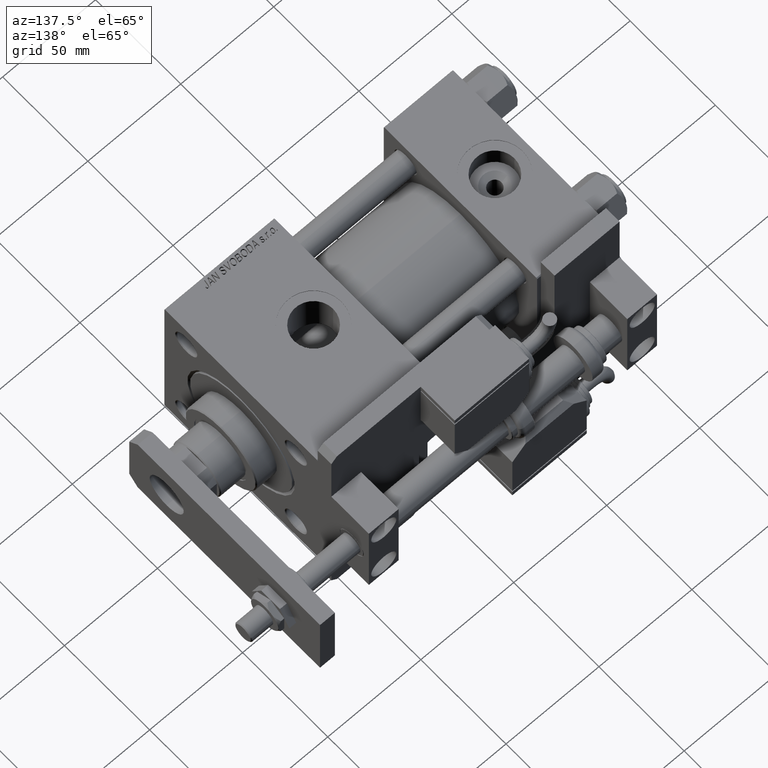
[diagram: clean part render]
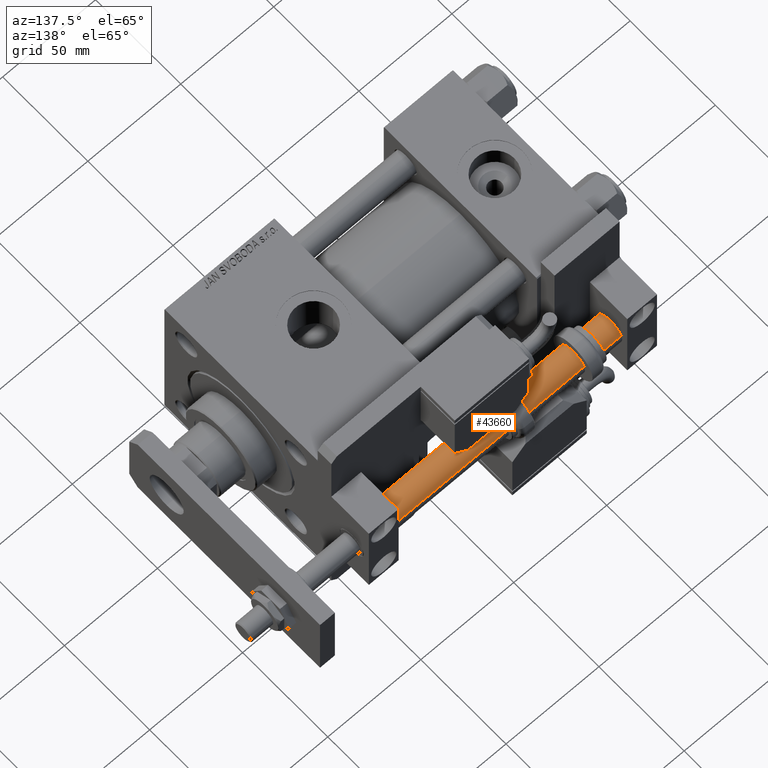
[diagram: same view with one face highlighted and labeled with its STEP entity id]
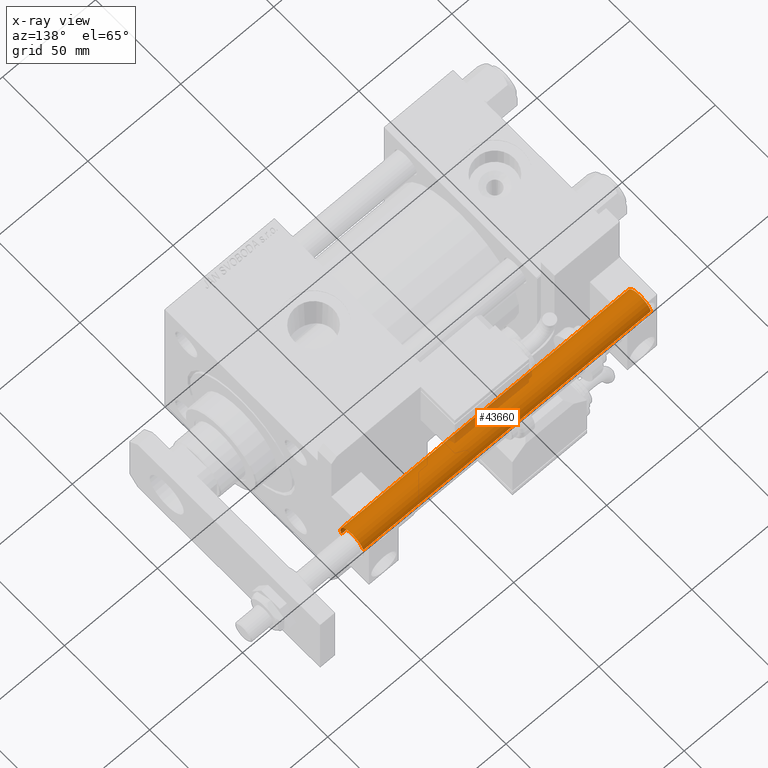
[diagram: x-ray of the same camera — body ghosted, the highlighted face saturated]
A machine part, auxiliary view. The second image highlights one B-rep face of the part: STEP entity #43660.
The next image is the same camera in x-ray: the body ghosted, the highlighted face saturated — about 7% of this face is hidden behind the body in this view.
In plain terms, the highlighted cylindrical surface (edge-blend (fillet) strip) has radius 7 mm, axis along (1, 0, 0).
Its self-contained STEP definition (entity closure, byte-faithful):
#1838 = VECTOR ( 'NONE', #40936, 1000.000000000000000 ) ;
#2216 = EDGE_CURVE ( 'NONE', #13658, #43818, #28799, .T. ) ;
#2800 = CARTESIAN_POINT ( 'NONE',  ( 0.000000000000000000, 0.000000000000000000, 155.0000000000000000 ) ) ;
#6615 = CIRCLE ( 'NONE', #37314, 7.000000000000000000 ) ;
#9400 = EDGE_CURVE ( 'NONE', #43818, #55010, #27667, .T. ) ;
#10211 = DIRECTION ( 'NONE',  ( -0.000000000000000000, -0.000000000000000000, -1.000000000000000000 ) ) ;
#11291 = CYLINDRICAL_SURFACE ( 'NONE', #17322, 7.000000000000000000 ) ;
#13044 = ORIENTED_EDGE ( 'NONE', *, *, #53874, .T. ) ;
#13658 = VERTEX_POINT ( 'NONE', #52014 ) ;
#15667 = DIRECTION ( 'NONE',  ( 1.000000000000000000, 0.000000000000000000, 0.000000000000000000 ) ) ;
#17322 = AXIS2_PLACEMENT_3D ( 'NONE', #2800, #32522, #40713 ) ;
#18706 = LINE ( 'NONE', #35950, #40163 ) ;
#20193 = DIRECTION ( 'NONE',  ( 0.000000000000000000, 0.000000000000000000, 1.000000000000000000 ) ) ;
#23480 = FACE_OUTER_BOUND ( 'NONE', #44867, .T. ) ;
#23836 = DIRECTION ( 'NONE',  ( -0.000000000000000000, -0.000000000000000000, 1.000000000000000000 ) ) ;
#27667 = LINE ( 'NONE', #53102, #1838 ) ;
#27912 = EDGE_CURVE ( 'NONE', #47038, #55010, #6615, .T. ) ;
#28799 = CIRCLE ( 'NONE', #43250, 7.000000000000000000 ) ;
#30612 = ORIENTED_EDGE ( 'NONE', *, *, #27912, .T. ) ;
#32208 = CARTESIAN_POINT ( 'NONE',  ( 7.000000000000000000, 8.572527594031473190E-16, 0.3000000000000224709 ) ) ;
#32522 = DIRECTION ( 'NONE',  ( -0.000000000000000000, -0.000000000000000000, -1.000000000000000000 ) ) ;
#33381 = ORIENTED_EDGE ( 'NONE', *, *, #9400, .F. ) ;
#35950 = CARTESIAN_POINT ( 'NONE',  ( -7.000000000000000000, 0.000000000000000000, 155.0000000000000000 ) ) ;
#37314 = AXIS2_PLACEMENT_3D ( 'NONE', #45024, #23836, #41898 ) ;
#40163 = VECTOR ( 'NONE', #10211, 1000.000000000000000 ) ;
#40713 = DIRECTION ( 'NONE',  ( -1.000000000000000000, 0.000000000000000000, 0.000000000000000000 ) ) ;
#40936 = DIRECTION ( 'NONE',  ( -0.000000000000000000, -0.000000000000000000, -1.000000000000000000 ) ) ;
#41898 = DIRECTION ( 'NONE',  ( 1.000000000000000000, 0.000000000000000000, 0.000000000000000000 ) ) ;
#43250 = AXIS2_PLACEMENT_3D ( 'NONE', #45344, #20193, #15667 ) ;
#43660 = ADVANCED_FACE ( 'NONE', ( #23480 ), #11291, .T. ) ;
#43818 = VERTEX_POINT ( 'NONE', #44607 ) ;
#44607 = CARTESIAN_POINT ( 'NONE',  ( 7.000000000000000000, 8.572527594031473190E-16, 155.0000000000000000 ) ) ;
#44867 = EDGE_LOOP ( 'NONE', ( #33381, #50355, #13044, #30612 ) ) ;
#45024 = CARTESIAN_POINT ( 'NONE',  ( 0.000000000000000000, 0.000000000000000000, 0.3000000000000224709 ) ) ;
#45344 = CARTESIAN_POINT ( 'NONE',  ( 0.000000000000000000, 0.000000000000000000, 155.0000000000000000 ) ) ;
#47038 = VERTEX_POINT ( 'NONE', #52454 ) ;
#50355 = ORIENTED_EDGE ( 'NONE', *, *, #2216, .F. ) ;
#52014 = CARTESIAN_POINT ( 'NONE',  ( -7.000000000000000000, 0.000000000000000000, 155.0000000000000000 ) ) ;
#52454 = CARTESIAN_POINT ( 'NONE',  ( -7.000000000000000000, 0.000000000000000000, 0.3000000000000224709 ) ) ;
#53102 = CARTESIAN_POINT ( 'NONE',  ( 7.000000000000000000, 8.572527594031473190E-16, 155.0000000000000000 ) ) ;
#53874 = EDGE_CURVE ( 'NONE', #13658, #47038, #18706, .T. ) ;
#55010 = VERTEX_POINT ( 'NONE', #32208 ) ;